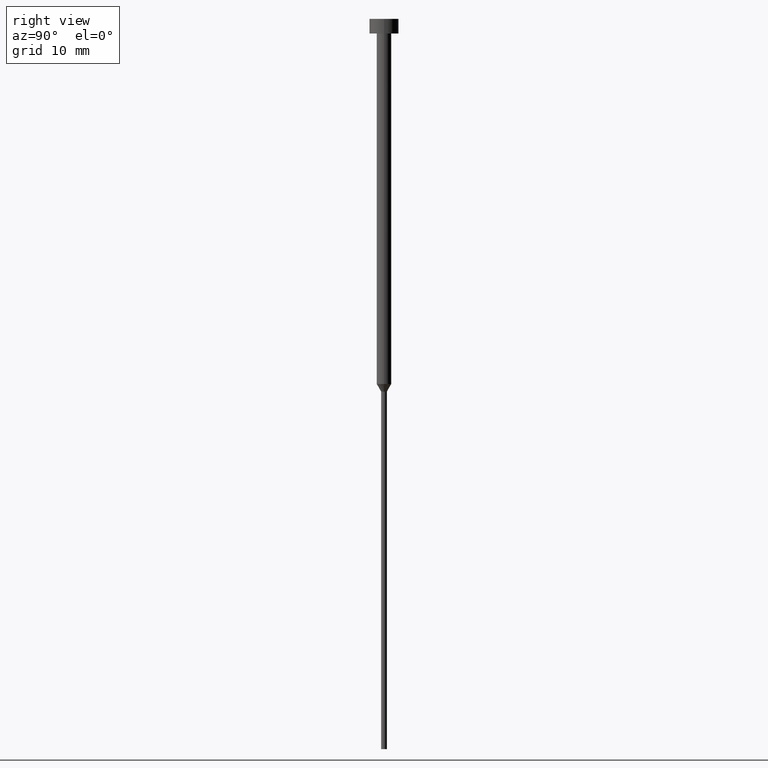
[diagram: clean part render]
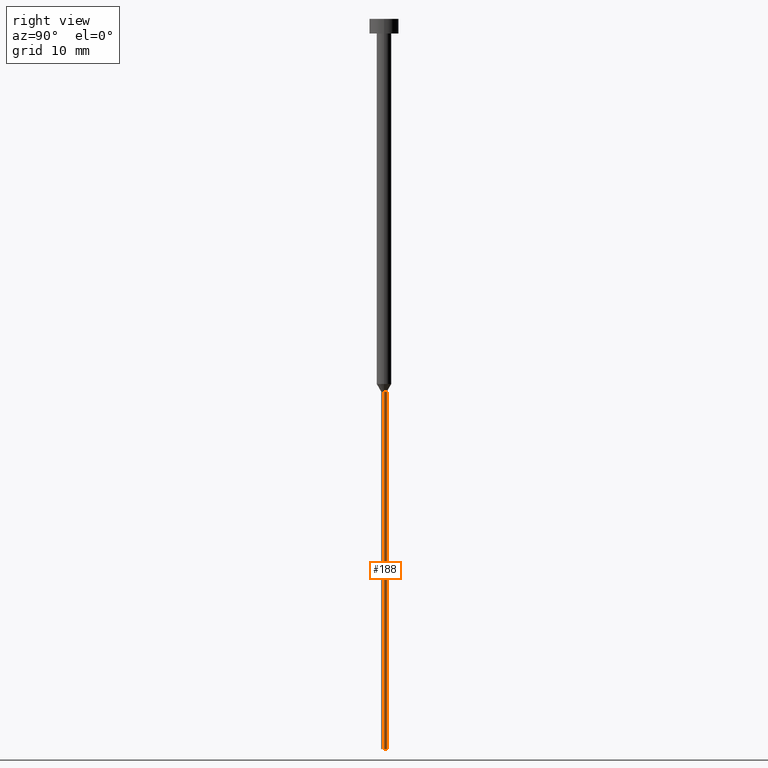
[diagram: same view with one face highlighted and labeled with its STEP entity id]
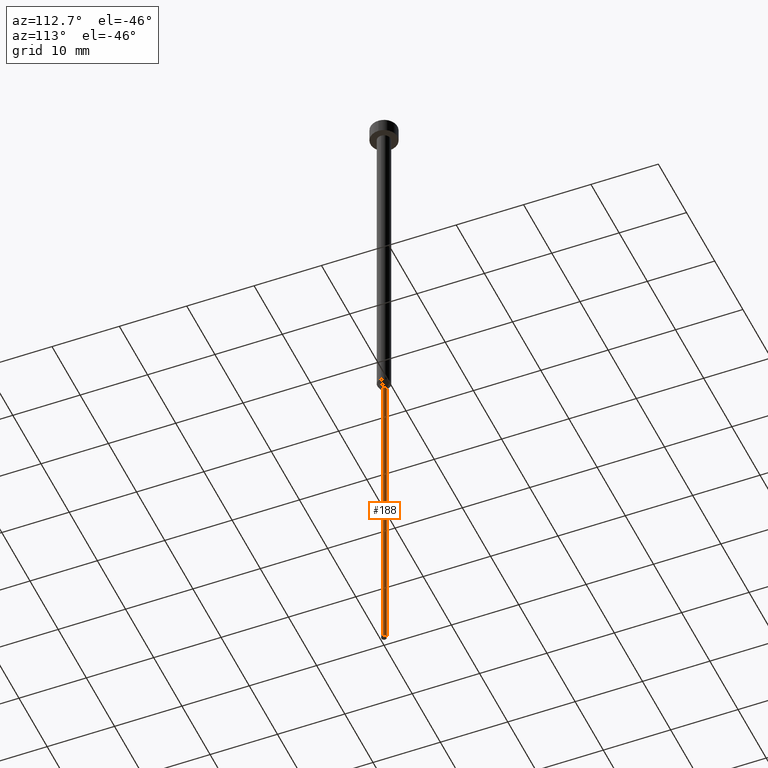
[diagram: same view with one face highlighted and labeled with its STEP entity id]
A machine part, right view. The second image highlights one B-rep face of the part: STEP entity #188.
A second angle (auxiliary view) of the same face is appended — the face is thin or edge-on in the first view.
In plain terms, the highlighted cylindrical surface (edge-blend (fillet) strip) has radius 0.4 mm, axis along (-0, -0, 1).
Its self-contained STEP definition (entity closure, byte-faithful):
#4 = DIRECTION ( 'NONE',  ( 1.000000000000000000, 0.000000000000000000, 0.000000000000000000 ) ) ;
#10 = ORIENTED_EDGE ( 'NONE', *, *, #255, .F. ) ;
#30 = CARTESIAN_POINT ( 'NONE',  ( 0.000000000000000000, 0.000000000000000000, -100.0000000000000000 ) ) ;
#43 = DIRECTION ( 'NONE',  ( -0.000000000000000000, -0.000000000000000000, 1.000000000000000000 ) ) ;
#50 = AXIS2_PLACEMENT_3D ( 'NONE', #30, #136, #4 ) ;
#64 = DIRECTION ( 'NONE',  ( -0.000000000000000000, -0.000000000000000000, 1.000000000000000000 ) ) ;
#73 = DIRECTION ( 'NONE',  ( 1.000000000000000000, 0.000000000000000000, 0.000000000000000000 ) ) ;
#82 = CARTESIAN_POINT ( 'NONE',  ( -0.3999999999999999667, 4.898587196589412459E-17, -51.03923048454132783 ) ) ;
#87 = VECTOR ( 'NONE', #64, 1000.000000000000000 ) ;
#96 = CYLINDRICAL_SURFACE ( 'NONE', #252, 0.3999999999999999667 ) ;
#97 = AXIS2_PLACEMENT_3D ( 'NONE', #277, #139, #249 ) ;
#103 = CIRCLE ( 'NONE', #97, 0.3999999999999999667 ) ;
#104 = VERTEX_POINT ( 'NONE', #303 ) ;
#108 = VERTEX_POINT ( 'NONE', #82 ) ;
#117 = CARTESIAN_POINT ( 'NONE',  ( -0.4000000000000000777, 4.898587196589413692E-17, -100.0000000000000000 ) ) ;
#122 = EDGE_CURVE ( 'NONE', #244, #292, #339, .T. ) ;
#127 = EDGE_CURVE ( 'NONE', #104, #108, #103, .T. ) ;
#136 = DIRECTION ( 'NONE',  ( -0.000000000000000000, -0.000000000000000000, 1.000000000000000000 ) ) ;
#139 = DIRECTION ( 'NONE',  ( -0.000000000000000000, -0.000000000000000000, 1.000000000000000000 ) ) ;
#149 = FACE_OUTER_BOUND ( 'NONE', #300, .T. ) ;
#153 = ORIENTED_EDGE ( 'NONE', *, *, #127, .F. ) ;
#181 = LINE ( 'NONE', #293, #287 ) ;
#188 = ADVANCED_FACE ( 'NONE', ( #149 ), #96, .T. ) ;
#210 = CARTESIAN_POINT ( 'NONE',  ( 0.4000000000000000222, 0.000000000000000000, -100.0000000000000000 ) ) ;
#229 = DIRECTION ( 'NONE',  ( -0.000000000000000000, -0.000000000000000000, 1.000000000000000000 ) ) ;
#236 = CARTESIAN_POINT ( 'NONE',  ( 0.3999999999999999667, 0.000000000000000000, 0.000000000000000000 ) ) ;
#244 = VERTEX_POINT ( 'NONE', #210 ) ;
#247 = EDGE_CURVE ( 'NONE', #292, #108, #181, .T. ) ;
#249 = DIRECTION ( 'NONE',  ( 1.000000000000000000, 0.000000000000000000, 0.000000000000000000 ) ) ;
#252 = AXIS2_PLACEMENT_3D ( 'NONE', #261, #43, #73 ) ;
#255 = EDGE_CURVE ( 'NONE', #244, #104, #344, .T. ) ;
#261 = CARTESIAN_POINT ( 'NONE',  ( 0.000000000000000000, 0.000000000000000000, 0.000000000000000000 ) ) ;
#277 = CARTESIAN_POINT ( 'NONE',  ( 0.000000000000000000, 0.000000000000000000, -51.03923048454132783 ) ) ;
#287 = VECTOR ( 'NONE', #229, 1000.000000000000000 ) ;
#292 = VERTEX_POINT ( 'NONE', #117 ) ;
#293 = CARTESIAN_POINT ( 'NONE',  ( -0.3999999999999999667, 4.898587196589412459E-17, 0.000000000000000000 ) ) ;
#300 = EDGE_LOOP ( 'NONE', ( #340, #332, #153, #10 ) ) ;
#303 = CARTESIAN_POINT ( 'NONE',  ( 0.3999999999999999667, 0.000000000000000000, -51.03923048454132783 ) ) ;
#332 = ORIENTED_EDGE ( 'NONE', *, *, #247, .T. ) ;
#339 = CIRCLE ( 'NONE', #50, 0.4000000000000000222 ) ;
#340 = ORIENTED_EDGE ( 'NONE', *, *, #122, .T. ) ;
#344 = LINE ( 'NONE', #236, #87 ) ;